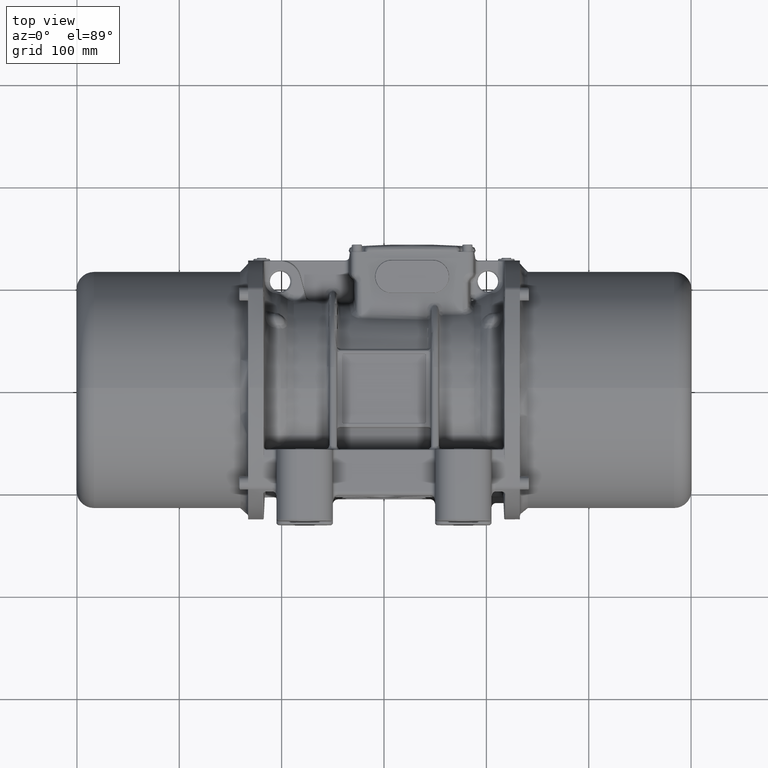
[diagram: clean part render]
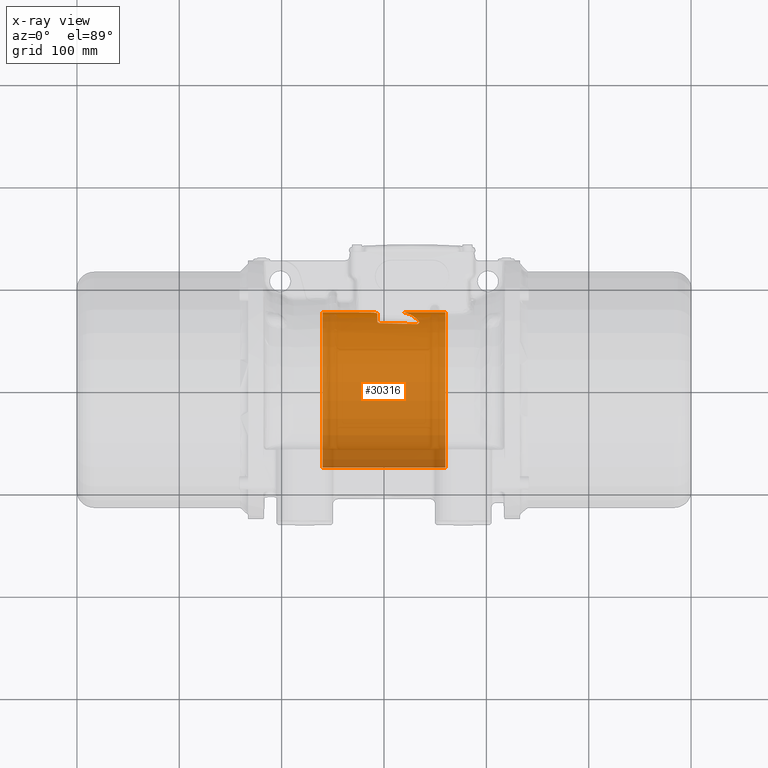
[diagram: x-ray — body ghosted, one internal face saturated and labeled with its STEP entity id]
A machine part, top view, then the same camera in x-ray: the body is ghosted and one INTERNAL B-rep face — a face not visible from any outside direction — is saturated and labeled: STEP entity #30316.
In plain terms, the highlighted cylindrical surface (partial cylindrical patch) has radius 76 mm, axis along (-1, 0, 0).
Its self-contained STEP definition (entity closure, byte-faithful):
#569 = DIRECTION ( 'NONE',  ( -9.130123557772668300E-017, 1.000000000000000000, 0.0000000000000000000 ) ) ;
#1155 = AXIS2_PLACEMENT_3D ( 'NONE', #21277, #61089, #41822 ) ;
#1669 = CARTESIAN_POINT ( 'NONE',  ( -21.85265013472390200, 75.76429056376902300, -5.981107993485298200 ) ) ;
#2310 = CARTESIAN_POINT ( 'NONE',  ( -8.453646712681816700, 75.49722197823550100, -8.735495635205122500 ) ) ;
#2742 = CARTESIAN_POINT ( 'NONE',  ( -10.93947350851021800, 75.69247315708979300, -6.831191596123355600 ) ) ;
#3172 = CARTESIAN_POINT ( 'NONE',  ( -9.592714981238263100, 75.61357719449043200, -7.659930684130522100 ) ) ;
#4299 = ORIENTED_EDGE ( 'NONE', *, *, #113240, .T. ) ;
#5629 = ORIENTED_EDGE ( 'NONE', *, *, #43302, .T. ) ;
#6979 = CARTESIAN_POINT ( 'NONE',  ( 34.28525764587809700, 67.25061219949833500, -35.40345690134707000 ) ) ;
#8828 = ORIENTED_EDGE ( 'NONE', *, *, #53954, .T. ) ;
#9060 = CARTESIAN_POINT ( 'NONE',  ( -4.565798067802003100, 65.97826572723545300, -37.72098540125557500 ) ) ;
#10174 = CARTESIAN_POINT ( 'NONE',  ( 60.00000000000000700, 76.00000000000000000, 9.307315673519883900E-015 ) ) ;
#11714 = CARTESIAN_POINT ( 'NONE',  ( -22.94772519366191700, 75.79234995224645400, -5.615240445710501400 ) ) ;
#11940 = CARTESIAN_POINT ( 'NONE',  ( -6.700084566164524500, 75.01429985911077800, -12.20331385113687300 ) ) ;
#11988 = CARTESIAN_POINT ( 'NONE',  ( 60.00000000000000700, 76.00000000000000000, 0.0000000000000000000 ) ) ;
#12803 = CARTESIAN_POINT ( 'NONE',  ( -6.500000000000000000, 74.69939758793239500, -14.00000000000000000 ) ) ;
#13028 = EDGE_CURVE ( 'NONE', #99182, #45721, #113740, .T. ) ;
#13049 = B_SPLINE_CURVE_WITH_KNOTS ( 'NONE', 3,
 ( #25644, #92650, #96202, #115937, #57575, #116361 ),
 .UNSPECIFIED., .F., .F.,
 ( 4, 2, 4 ),
 ( 0.003038700690715825800, 0.004555654411798018600, 0.006072608132880210500 ),
 .UNSPECIFIED. ) ;
#13154 = CARTESIAN_POINT ( 'NONE',  ( 33.55840560035861800, 65.38496269948883800, -38.74050209410717800 ) ) ;
#13160 = CARTESIAN_POINT ( 'NONE',  ( -24.46444119692580100, 75.93798905425629200, -3.069498069008635100 ) ) ;
#13799 = CARTESIAN_POINT ( 'NONE',  ( -24.46444119692580100, 75.93798905425629200, -3.069498069008635100 ) ) ;
#13832 = CARTESIAN_POINT ( 'NONE',  ( 8.083134052664828300, 65.26595119115911800, -38.94161537148662000 ) ) ;
#15231 = CARTESIAN_POINT ( 'NONE',  ( -23.69960370710481400, 75.83473080625766700, -5.011171049146762300 ) ) ;
#16282 = VERTEX_POINT ( 'NONE', #108087 ) ;
#17443 = CARTESIAN_POINT ( 'NONE',  ( -6.014512637415103700, 66.61512370644524600, -36.58584803643679400 ) ) ;
#17511 = CARTESIAN_POINT ( 'NONE',  ( 34.22924265401754700, 66.01221718490100400, -37.66148141538209900 ) ) ;
#18312 = CARTESIAN_POINT ( 'NONE',  ( -4.195798316223614300, 65.91316568077465400, -37.83462538408671300 ) ) ;
#18371 = CARTESIAN_POINT ( 'NONE',  ( 34.19321914199999700, 67.35378202191729700, -35.20607969298965400 ) ) ;
#19527 = CARTESIAN_POINT ( 'NONE',  ( 60.00000000000000700, 76.00000000000000000, 9.307315673519883900E-015 ) ) ;
#20019 = CARTESIAN_POINT ( 'NONE',  ( -6.500000000000000900, 67.32533198469614900, -35.26269005899453600 ) ) ;
#20069 = VERTEX_POINT ( 'NONE', #13160 ) ;
#20353 = DIRECTION ( 'NONE',  ( -1.000000000000000000, 4.565061778886339700E-017, 0.0000000000000000000 ) ) ;
#21163 = CARTESIAN_POINT ( 'NONE',  ( -6.550562505530772100, 74.88792529085355900, -12.96390584813346400 ) ) ;
#21203 = VERTEX_POINT ( 'NONE', #97192 ) ;
#21277 = CARTESIAN_POINT ( 'NONE',  ( 60.00000000000000000, 0.0000000000000000000, 0.0000000000000000000 ) ) ;
#22994 = CIRCLE ( 'NONE', #1155, 76.00000000000000000 ) ;
#23988 = CARTESIAN_POINT ( 'NONE',  ( 18.50000000000000000, 76.00000000000000000, 9.307315666280043500E-015 ) ) ;
#24199 = CARTESIAN_POINT ( 'NONE',  ( -13.96899301213243800, 75.76278769950316400, -6.000000000001557900 ) ) ;
#24540 =( BOUNDED_CURVE ( )  B_SPLINE_CURVE ( 3, ( #128353, #98534, #38505, #48541 ),
 .UNSPECIFIED., .F., .F. ) 
 B_SPLINE_CURVE_WITH_KNOTS ( ( 4, 4 ),
 ( 1.609731529563427100, 2.052441590786688900 ),
 .UNSPECIFIED. ) 
 CURVE ( )  GEOMETRIC_REPRESENTATION_ITEM ( )  RATIONAL_B_SPLINE_CURVE ( ( 1.000000000000000000, 0.9837338971167055600, 0.9837338971167055600, 1.000000000000000000 ) ) 
 REPRESENTATION_ITEM ( '' )  );
#25644 = CARTESIAN_POINT ( 'NONE',  ( 18.50000000000000000, 76.00000000000000000, 9.307315666280043500E-015 ) ) ;
#27412 = DIRECTION ( 'NONE',  ( -1.000000000000000000, -0.0000000000000000000, -0.0000000000000000000 ) ) ;
#27451 = CARTESIAN_POINT ( 'NONE',  ( -6.500000000000000000, 67.50770712806829000, -34.91001974091330600 ) ) ;
#27907 = CARTESIAN_POINT ( 'NONE',  ( -5.238266952210138600, 66.18219701727170400, -37.36221165688466800 ) ) ;
#28381 = VERTEX_POINT ( 'NONE', #74266 ) ;
#28558 = CIRCLE ( 'NONE', #60588, 76.00000000000000000 ) ;
#29483 = VERTEX_POINT ( 'NONE', #118650 ) ;
#29921 = EDGE_CURVE ( 'NONE', #77389, #62600, #56464, .T. ) ;
#30316 = ADVANCED_FACE ( 'NONE', ( #81446 ), #111355, .F. ) ;
#30399 = DIRECTION ( 'NONE',  ( -1.000000000000000000, 4.565061778886339700E-017, 0.0000000000000000000 ) ) ;
#31187 = CARTESIAN_POINT ( 'NONE',  ( -7.297735836114545000, 75.27573850074651300, -10.47862233439715300 ) ) ;
#32053 = CARTESIAN_POINT ( 'NONE',  ( -6.762291471396453700, 75.05479863197200500, -11.95161564642541100 ) ) ;
#32308 = VERTEX_POINT ( 'NONE', #92551 ) ;
#32419 = CARTESIAN_POINT ( 'NONE',  ( 33.06755972305095500, 65.14329916301876700, -39.14534815830930400 ) ) ;
#32937 = CARTESIAN_POINT ( 'NONE',  ( -14.50000000000000000, 75.76278769950479800, -5.999999999990230000 ) ) ;
#33150 = CARTESIAN_POINT ( 'NONE',  ( -23.42382230507503500, 75.81644598781352300, -5.280601245912018600 ) ) ;
#33590 = CARTESIAN_POINT ( 'NONE',  ( -24.04397388337477900, 75.86413149536095100, -4.545226385215301900 ) ) ;
#33966 = CARTESIAN_POINT ( 'NONE',  ( 20.00391407112393300, 64.94999205974787100, -39.46634419434173000 ) ) ;
#34107 = VECTOR ( 'NONE', #30399, 1000.000000000000000 ) ;
#34358 = CARTESIAN_POINT ( 'NONE',  ( -24.49999999995801800, 76.00000000000000000, -1.019602914934355700 ) ) ;
#34462 = CARTESIAN_POINT ( 'NONE',  ( -23.27051774807894100, 75.80771897833805900, -5.403793098209505700 ) ) ;
#35288 = ORIENTED_EDGE ( 'NONE', *, *, #65456, .F. ) ;
#37614 = CARTESIAN_POINT ( 'NONE',  ( 34.44641793950998500, 66.92517331776872400, -36.01493024137698000 ) ) ;
#38043 = CARTESIAN_POINT ( 'NONE',  ( 34.37625536377181100, 66.23855672176688400, -37.26269617905806100 ) ) ;
#38412 = CARTESIAN_POINT ( 'NONE',  ( -5.082102062805956800, 66.12342684641032500, -37.46602554627958900 ) ) ;
#38505 = CARTESIAN_POINT ( 'NONE',  ( 29.52014546590932700, 72.59202646479006700, -25.18464085452819400 ) ) ;
#39013 = DIRECTION ( 'NONE',  ( -9.130123557772668300E-017, -1.000000000000000000, 0.0000000000000000000 ) ) ;
#39258 = CARTESIAN_POINT ( 'NONE',  ( -6.500000000000000000, 74.69939758793239500, -14.00000000000000000 ) ) ;
#39267 = ORIENTED_EDGE ( 'NONE', *, *, #86679, .F. ) ;
#39554 = DIRECTION ( 'NONE',  ( -1.000000000000000000, -4.565061778886339700E-017, -0.0000000000000000000 ) ) ;
#40382 = EDGE_LOOP ( 'NONE', ( #4299, #76376, #126343, #47989, #5629, #53770, #39267, #94110, #75934, #47304, #97935, #59975, #8828, #49816, #59492, #72887, #35288 ) ) ;
#40974 = EDGE_CURVE ( 'NONE', #116756, #32308, #64741, .T. ) ;
#41708 = CARTESIAN_POINT ( 'NONE',  ( -6.499999999992975400, 74.79718466120208100, -13.47824032392331600 ) ) ;
#41754 = EDGE_CURVE ( 'NONE', #45918, #21203, #103115, .T. ) ;
#41822 = DIRECTION ( 'NONE',  ( -9.130123557772668300E-017, -1.000000000000000000, 0.0000000000000000000 ) ) ;
#42091 = DIRECTION ( 'NONE',  ( -1.000000000000000000, 4.565061778886339700E-017, 0.0000000000000000000 ) ) ;
#43245 = VERTEX_POINT ( 'NONE', #65626 ) ;
#43247 = CARTESIAN_POINT ( 'NONE',  ( -23.82372023046905700, 75.84434915377890700, -4.864178438128028900 ) ) ;
#43302 = EDGE_CURVE ( 'NONE', #43245, #116756, #121475, .T. ) ;
#44765 = CARTESIAN_POINT ( 'NONE',  ( -13.44377783769379400, 75.75869592326115800, -6.052351137871206700 ) ) ;
#45080 = AXIS2_PLACEMENT_3D ( 'NONE', #70594, #39554, #569 ) ;
#45442 = EDGE_CURVE ( 'NONE', #62600, #16282, #13049, .T. ) ;
#45721 = VERTEX_POINT ( 'NONE', #32937 ) ;
#45918 = VERTEX_POINT ( 'NONE', #74554 ) ;
#46312 = CARTESIAN_POINT ( 'NONE',  ( 34.22924265401754700, 66.01221718490100400, -37.66148141538209900 ) ) ;
#47304 = ORIENTED_EDGE ( 'NONE', *, *, #57879, .T. ) ;
#47989 = ORIENTED_EDGE ( 'NONE', *, *, #57904, .T. ) ;
#48541 = CARTESIAN_POINT ( 'NONE',  ( 34.19321914199999700, 67.35378202191729700, -35.20607969298965400 ) ) ;
#48878 = CARTESIAN_POINT ( 'NONE',  ( -3.806930692986284700, 65.87885657193510300, -37.89427736181809800 ) ) ;
#49728 = CARTESIAN_POINT ( 'NONE',  ( -6.437482184480504800, 67.14057735038153400, -35.61295355872550800 ) ) ;
#49816 = ORIENTED_EDGE ( 'NONE', *, *, #54472, .F. ) ;
#50994 = B_SPLINE_CURVE_WITH_KNOTS ( 'NONE', 3,
 ( #62503, #112945, #1669, #71267, #101591, #71717, #11714, #34462, #33150, #15231, #43247, #33590, #113394, #94081, #74308, #64217 ),
 .UNSPECIFIED., .F., .F.,
 ( 4, 2, 2, 2, 2, 2, 2, 4 ),
 ( 3.294331799844929800E-015, 0.0005776202958310810300, 0.001155240591658867600, 0.001732860887486654200, 0.002310481183314441000, 0.002888101479142227300, 0.003465721774970014100, 0.004620962366625583400 ),
 .UNSPECIFIED. ) ;
#52505 = CARTESIAN_POINT ( 'NONE',  ( 33.20370914911197200, 65.19779906424869900, -39.05458723947541000 ) ) ;
#53260 = LINE ( 'NONE', #128193, #57963 ) ;
#53501 = LINE ( 'NONE', #10174, #111570 ) ;
#53770 = ORIENTED_EDGE ( 'NONE', *, *, #40974, .T. ) ;
#53954 = EDGE_CURVE ( 'NONE', #125235, #20069, #50994, .T. ) ;
#54333 = CARTESIAN_POINT ( 'NONE',  ( -11.41251328266281800, 75.71256328870407500, -6.605922568660509400 ) ) ;
#54472 = EDGE_CURVE ( 'NONE', #28381, #20069, #107380, .T. ) ;
#55315 = CARTESIAN_POINT ( 'NONE',  ( -24.48823344863211900, 75.97949169840677500, -2.042741489792782700 ) ) ;
#56464 = LINE ( 'NONE', #19527, #86282 ) ;
#56797 = VERTEX_POINT ( 'NONE', #27451 ) ;
#57317 = CARTESIAN_POINT ( 'NONE',  ( 34.31367292758168500, 66.12396363177531100, -37.46561469752084900 ) ) ;
#57335 = CARTESIAN_POINT ( 'NONE',  ( -6.500000000000000000, 3.035766082959415200E-015, 0.0000000000000000000 ) ) ;
#57575 = CARTESIAN_POINT ( 'NONE',  ( 18.93921027561887300, 75.96049867207602800, -2.493752114116368100 ) ) ;
#57766 = DIRECTION ( 'NONE',  ( -4.565061778886334200E-017, -1.000000000000000000, 8.881784197001252300E-016 ) ) ;
#57879 = EDGE_CURVE ( 'NONE', #56797, #99182, #28558, .T. ) ;
#57904 = EDGE_CURVE ( 'NONE', #16282, #43245, #24540, .T. ) ;
#57963 = VECTOR ( 'NONE', #27412, 1000.000000000000000 ) ;
#58190 = DIRECTION ( 'NONE',  ( 1.000000000000000000, -4.565061778886339700E-017, -0.0000000000000000000 ) ) ;
#58701 = EDGE_CURVE ( 'NONE', #28381, #45918, #53501, .T. ) ;
#59492 = ORIENTED_EDGE ( 'NONE', *, *, #58701, .T. ) ;
#59975 = ORIENTED_EDGE ( 'NONE', *, *, #61296, .T. ) ;
#60424 = CARTESIAN_POINT ( 'NONE',  ( 34.22924265401754700, 66.01221718490100400, -37.66148141538209900 ) ) ;
#60588 = AXIS2_PLACEMENT_3D ( 'NONE', #57335, #58190, #57766 ) ;
#61089 = DIRECTION ( 'NONE',  ( 1.000000000000000000, -4.565061778886339700E-017, -0.0000000000000000000 ) ) ;
#61296 = EDGE_CURVE ( 'NONE', #45721, #125235, #53260, .T. ) ;
#62003 = CARTESIAN_POINT ( 'NONE',  ( 31.95590600269005000, 64.94853390481988200, -39.46755534408259800 ) ) ;
#62286 = CARTESIAN_POINT ( 'NONE',  ( -8.117172765290021600, 75.44857651337605400, -9.149030623839189900 ) ) ;
#62503 = CARTESIAN_POINT ( 'NONE',  ( -21.46524630200000100, 75.76278769950479800, -5.999999999980449400 ) ) ;
#62572 = CARTESIAN_POINT ( 'NONE',  ( 33.65553906475909700, 65.45655542917009500, -38.61915939703700200 ) ) ;
#62600 = VERTEX_POINT ( 'NONE', #23988 ) ;
#62709 = CARTESIAN_POINT ( 'NONE',  ( -10.47634138069354700, 75.66955822193827400, -7.080510557608036500 ) ) ;
#63282 = CARTESIAN_POINT ( 'NONE',  ( 2.133093225944886900, 65.52744198980714400, -38.50520841698510600 ) ) ;
#63990 = CARTESIAN_POINT ( 'NONE',  ( -12.40741768608115700, 75.74062393421866100, -6.274061839964672600 ) ) ;
#64217 = CARTESIAN_POINT ( 'NONE',  ( -24.46444119692580100, 75.93798905425629200, -3.069498069008635100 ) ) ;
#64741 = B_SPLINE_CURVE_WITH_KNOTS ( 'NONE', 3,
 ( #60424, #102088, #103823, #62572 ),
 .UNSPECIFIED., .F., .F.,
 ( 4, 4 ),
 ( 2.860979249076399600E-017, 0.001247014095434845900 ),
 .UNSPECIFIED. ) ;
#65456 = EDGE_CURVE ( 'NONE', #75281, #21203, #81077, .T. ) ;
#65626 = CARTESIAN_POINT ( 'NONE',  ( 34.19321914199999700, 67.35378202191729700, -35.20607969298965400 ) ) ;
#67984 = EDGE_CURVE ( 'NONE', #83895, #29483, #112413, .T. ) ;
#68174 = CARTESIAN_POINT ( 'NONE',  ( -5.528736305904654800, 66.31392169424823600, -37.12791202661328800 ) ) ;
#68903 = B_SPLINE_CURVE_WITH_KNOTS ( 'NONE', 3,
 ( #92457, #71835, #81903, #32419, #52505, #92017, #13154, #113083 ),
 .UNSPECIFIED., .F., .F.,
 ( 4, 2, 2, 4 ),
 ( 1.387778780781446000E-017, 0.001019754375161069000, 0.001529631562741601800, 0.002039508750322134900 ),
 .UNSPECIFIED. ) ;
#70594 = CARTESIAN_POINT ( 'NONE',  ( -60.00000000000000000, 0.0000000000000000000, 0.0000000000000000000 ) ) ;
#71267 = CARTESIAN_POINT ( 'NONE',  ( -22.23063195222334800, 75.77009610493736600, -5.907107050791030800 ) ) ;
#71717 = CARTESIAN_POINT ( 'NONE',  ( -22.77735574831168100, 75.78562306795548400, -5.704798135692071200 ) ) ;
#71835 = CARTESIAN_POINT ( 'NONE',  ( 32.29914829078890600, 64.95157166805782400, -39.46255658296227200 ) ) ;
#72347 = CARTESIAN_POINT ( 'NONE',  ( -9.190321662037531400, 75.57940803306003400, -7.993277913089380100 ) ) ;
#72887 = ORIENTED_EDGE ( 'NONE', *, *, #41754, .T. ) ;
#73806 = CARTESIAN_POINT ( 'NONE',  ( -3.806930692986284700, 65.87885657193510300, -37.89427736181809800 ) ) ;
#74266 = CARTESIAN_POINT ( 'NONE',  ( -24.49999999995806000, 76.00000000000008500, 4.723743100979010300E-015 ) ) ;
#74308 = CARTESIAN_POINT ( 'NONE',  ( -24.45539954330350300, 75.92221700618696900, -3.459691379683778500 ) ) ;
#74554 = CARTESIAN_POINT ( 'NONE',  ( -60.00000000000000700, 76.00000000000000000, 9.360286600299591500E-015 ) ) ;
#75281 = VERTEX_POINT ( 'NONE', #91673 ) ;
#75934 = ORIENTED_EDGE ( 'NONE', *, *, #81718, .T. ) ;
#76376 = ORIENTED_EDGE ( 'NONE', *, *, #29921, .T. ) ;
#77389 = VERTEX_POINT ( 'NONE', #11988 ) ;
#77814 = CARTESIAN_POINT ( 'NONE',  ( -4.746455678574711200, 66.02144339571897500, -37.64544673785835700 ) ) ;
#78666 = CARTESIAN_POINT ( 'NONE',  ( -4.004686708285909400, 65.89055590980989100, -37.87393816932017600 ) ) ;
#80310 = CARTESIAN_POINT ( 'NONE',  ( 59.99999999999999300, -76.00000000000000000, 0.0000000000000000000 ) ) ;
#81077 = LINE ( 'NONE', #80310, #34107 ) ;
#81446 = FACE_OUTER_BOUND ( 'NONE', #40382, .T. ) ;
#81718 = EDGE_CURVE ( 'NONE', #83895, #56797, #127714, .T. ) ;
#81903 = CARTESIAN_POINT ( 'NONE',  ( 32.63210292376301400, 65.00737394777699800, -39.37095586247730200 ) ) ;
#82418 = CARTESIAN_POINT ( 'NONE',  ( -10.24853179736637000, 75.65660106095603500, -7.218075537257625700 ) ) ;
#83895 = VERTEX_POINT ( 'NONE', #109306 ) ;
#86282 = VECTOR ( 'NONE', #20353, 1000.000000000000000 ) ;
#86679 = EDGE_CURVE ( 'NONE', #29483, #32308, #68903, .T. ) ;
#87136 = CARTESIAN_POINT ( 'NONE',  ( 34.47134449353104200, 66.81180074527418400, -36.22486493466266200 ) ) ;
#88439 = CARTESIAN_POINT ( 'NONE',  ( 34.47675234077656400, 66.58176555668748600, -36.64595548918158800 ) ) ;
#90678 = DIRECTION ( 'NONE',  ( -1.000000000000000000, 4.565061778886339700E-017, 0.0000000000000000000 ) ) ;
#91673 = CARTESIAN_POINT ( 'NONE',  ( 59.99999999999999300, -76.00000000000000000, 9.360286600299593100E-015 ) ) ;
#92017 = CARTESIAN_POINT ( 'NONE',  ( 33.44798118973094600, 65.31816537349132500, -38.85294145247159700 ) ) ;
#92457 = CARTESIAN_POINT ( 'NONE',  ( 31.95590600269005000, 64.94853390481988200, -39.46755534408259800 ) ) ;
#92551 = CARTESIAN_POINT ( 'NONE',  ( 33.65553906475909700, 65.45655542917009500, -38.61915939703700200 ) ) ;
#92650 = CARTESIAN_POINT ( 'NONE',  ( 18.49999999999999600, 75.99999999999998600, -0.5068191776709412000 ) ) ;
#94081 = CARTESIAN_POINT ( 'NONE',  ( -24.36925414151788200, 75.90347608205725300, -3.845394273323055900 ) ) ;
#94110 = ORIENTED_EDGE ( 'NONE', *, *, #67984, .F. ) ;
#94739 = CARTESIAN_POINT ( 'NONE',  ( -12.66458978520738800, 75.74597329465383700, -6.208886391125083100 ) ) ;
#96202 = CARTESIAN_POINT ( 'NONE',  ( 18.55439006606212600, 75.99493039864424300, -1.009898033206773100 ) ) ;
#97192 = CARTESIAN_POINT ( 'NONE',  ( -59.99999999999999300, -76.00000000000000000, 0.0000000000000000000 ) ) ;
#97935 = ORIENTED_EDGE ( 'NONE', *, *, #13028, .T. ) ;
#98534 = CARTESIAN_POINT ( 'NONE',  ( 24.42480627067246600, 75.50223730523966000, -14.25765068795088600 ) ) ;
#99182 = VERTEX_POINT ( 'NONE', #39258 ) ;
#99398 = CARTESIAN_POINT ( 'NONE',  ( -21.46524630200000100, 75.76278769950479800, -5.999999999980449400 ) ) ;
#101356 = CARTESIAN_POINT ( 'NONE',  ( -7.541016941790537100, 75.33792865133536100, -10.01942941374492500 ) ) ;
#101591 = CARTESIAN_POINT ( 'NONE',  ( -22.41841444207495800, 75.77446452281621700, -5.851146199480257200 ) ) ;
#102088 = CARTESIAN_POINT ( 'NONE',  ( 34.08243785383158600, 65.81791327043060800, -38.00205304681324500 ) ) ;
#103115 = CIRCLE ( 'NONE', #45080, 76.00000000000000000 ) ;
#103823 = CARTESIAN_POINT ( 'NONE',  ( 33.89349683691218500, 65.63179837861864000, -38.32213429806167700 ) ) ;
#104414 = CARTESIAN_POINT ( 'NONE',  ( -11.90503560590087200, 75.72771473746111300, -6.428000198984833000 ) ) ;
#104969 = CARTESIAN_POINT ( 'NONE',  ( -24.49999999995806000, 76.00000000000008500, 4.723743100979010300E-015 ) ) ;
#107349 = CARTESIAN_POINT ( 'NONE',  ( 34.35335559265977400, 67.14420791550230700, -35.60490650604823100 ) ) ;
#107380 = B_SPLINE_CURVE_WITH_KNOTS ( 'NONE', 3,
 ( #104969, #34358, #55315, #13799 ),
 .UNSPECIFIED., .F., .F.,
 ( 4, 4 ),
 ( 0.02274101424832613800, 0.02576618511708430800 ),
 .UNSPECIFIED. ) ;
#108087 = CARTESIAN_POINT ( 'NONE',  ( 19.15584549086225200, 75.94240117640470100, -2.958327832072070100 ) ) ;
#108166 = CARTESIAN_POINT ( 'NONE',  ( -6.196242390856607300, 66.78719516904003200, -36.27134060895825500 ) ) ;
#109306 = CARTESIAN_POINT ( 'NONE',  ( -3.806930692986284700, 65.87885657193510300, -37.89427736181809800 ) ) ;
#109602 = CARTESIAN_POINT ( 'NONE',  ( 60.00000000000000000, 0.0000000000000000000, 0.0000000000000000000 ) ) ;
#109861 = CARTESIAN_POINT ( 'NONE',  ( -6.500000000000000000, 67.50770712806829000, -34.91001974091330600 ) ) ;
#111355 = CYLINDRICAL_SURFACE ( 'NONE', #129477, 76.00000000000000000 ) ;
#111570 = VECTOR ( 'NONE', #42091, 1000.000000000000000 ) ;
#112413 = B_SPLINE_CURVE_WITH_KNOTS ( 'NONE', 3,
 ( #73806, #63282, #13832, #33966, #122054, #62003 ),
 .UNSPECIFIED., .F., .F.,
 ( 4, 2, 4 ),
 ( 0.0000000000000000000, 0.01790475629254995000, 0.03580951258509990100 ),
 .UNSPECIFIED. ) ;
#112945 = CARTESIAN_POINT ( 'NONE',  ( -21.66056339325004400, 75.76278769950323500, -6.000000000000000900 ) ) ;
#113083 = CARTESIAN_POINT ( 'NONE',  ( 33.65553906475909700, 65.45655542917009500, -38.61915939703700200 ) ) ;
#113240 = EDGE_CURVE ( 'NONE', #75281, #77389, #22994, .T. ) ;
#113394 = CARTESIAN_POINT ( 'NONE',  ( -24.13884344647103900, 75.87421271775760100, -4.374360418924469600 ) ) ;
#113740 = B_SPLINE_CURVE_WITH_KNOTS ( 'NONE', 3,
 ( #12803, #41708, #21163, #11940, #32053, #122758, #122327, #31187, #101356, #62286, #2310, #72347, #3172, #82418, #62709, #2742, #54333, #104414, #63990, #94739, #44765, #24199, #114917 ),
 .UNSPECIFIED., .F., .F.,
 ( 4, 2, 2, 2, 2, 2, 2, 2, 1, 2, 2, 4 ),
 ( 1.080838277467252600E-013, 0.001570267447510202900, 0.002355401171211262200, 0.003140534894912321700, 0.004710802342314442500, 0.006281069789716562300, 0.007851337237118684000, 0.008636470960819741700, 0.009421604684520799500, 0.01020673840822185700, 0.01099187213192291500, 0.01256213957932503100 ),
 .UNSPECIFIED. ) ;
#114917 = CARTESIAN_POINT ( 'NONE',  ( -14.50000000000000000, 75.76278769950479800, -5.999999999990230000 ) ) ;
#115937 = CARTESIAN_POINT ( 'NONE',  ( 18.77483847833795800, 75.97509951578084000, -2.008380914928177100 ) ) ;
#116361 = CARTESIAN_POINT ( 'NONE',  ( 19.15584549086225200, 75.94240117640470100, -2.958327832072070100 ) ) ;
#116756 = VERTEX_POINT ( 'NONE', #46312 ) ;
#117347 = CARTESIAN_POINT ( 'NONE',  ( -5.661213056802307800, 66.38623476874303700, -36.99854833600763000 ) ) ;
#117830 = CARTESIAN_POINT ( 'NONE',  ( 34.45749207004244900, 66.46710449353030000, -36.85347939288286100 ) ) ;
#118650 = CARTESIAN_POINT ( 'NONE',  ( 31.95590600269005000, 64.94853390481988200, -39.46755534408259800 ) ) ;
#121475 = B_SPLINE_CURVE_WITH_KNOTS ( 'NONE', 3,
 ( #18371, #6979, #107349, #37614, #87136, #88439, #117830, #38043, #57317, #17511 ),
 .UNSPECIFIED., .F., .F.,
 ( 4, 2, 2, 2, 4 ),
 ( 4.048516840305109800E-014, 0.0007110673893197989600, 0.001422134778599112700, 0.002133202167878426300, 0.002844269557157740000 ),
 .UNSPECIFIED. ) ;
#122054 = CARTESIAN_POINT ( 'NONE',  ( 25.97465545320899900, 64.89560143624751700, -39.55466222465263100 ) ) ;
#122327 = CARTESIAN_POINT ( 'NONE',  ( -7.000240153044219800, 75.17011805847430100, -11.20325552194366000 ) ) ;
#122758 = CARTESIAN_POINT ( 'NONE',  ( -6.912127553691595600, 75.13265041525302500, -11.45201972689210900 ) ) ;
#125235 = VERTEX_POINT ( 'NONE', #99398 ) ;
#126343 = ORIENTED_EDGE ( 'NONE', *, *, #45442, .T. ) ;
#127714 = B_SPLINE_CURVE_WITH_KNOTS ( 'NONE', 3,
 ( #48878, #78666, #18312, #9060, #77814, #38412, #27907, #68174, #117347, #17443, #108166, #49728, #20019, #109861 ),
 .UNSPECIFIED., .F., .F.,
 ( 4, 2, 2, 2, 2, 2, 4 ),
 ( 3.803453669572252800E-014, 0.0005881333448011642000, 0.001176266689564293700, 0.001764400034327423700, 0.002352533379090553200, 0.003528800068616814000, 0.004705066758143075200 ),
 .UNSPECIFIED. ) ;
#128193 = CARTESIAN_POINT ( 'NONE',  ( 0.0000000000000000000, 75.76278769950631900, -5.999999999960900600 ) ) ;
#128353 = CARTESIAN_POINT ( 'NONE',  ( 19.15584549086225200, 75.94240117640470100, -2.958327832072070100 ) ) ;
#129477 = AXIS2_PLACEMENT_3D ( 'NONE', #109602, #90678, #39013 ) ;